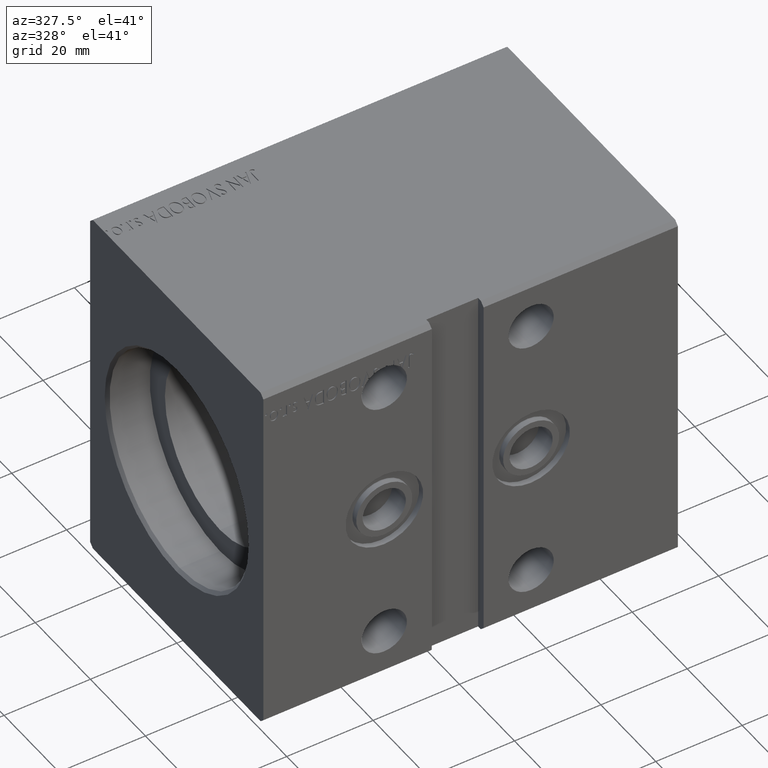
[diagram: clean part render]
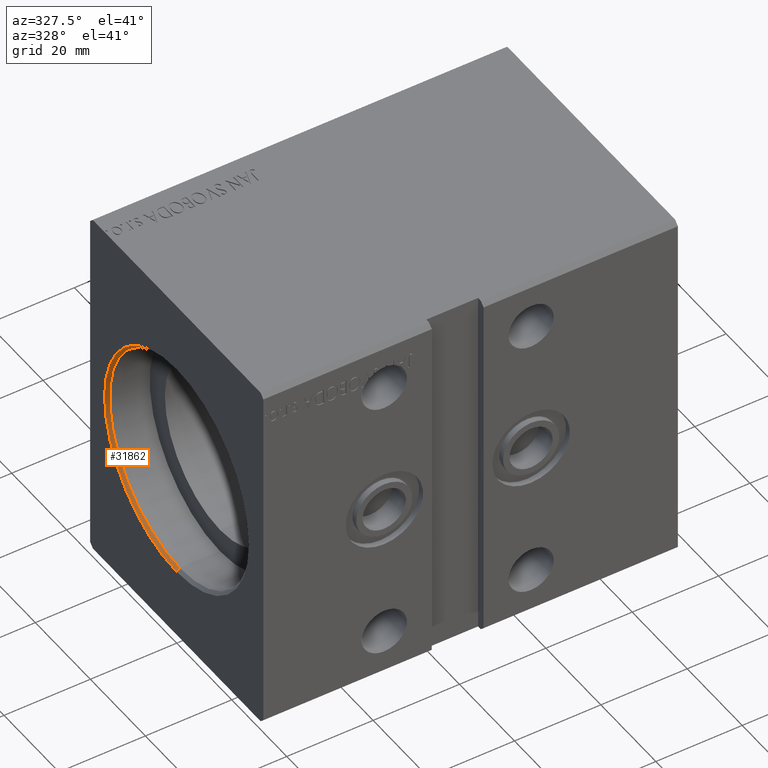
[diagram: same view with one face highlighted and labeled with its STEP entity id]
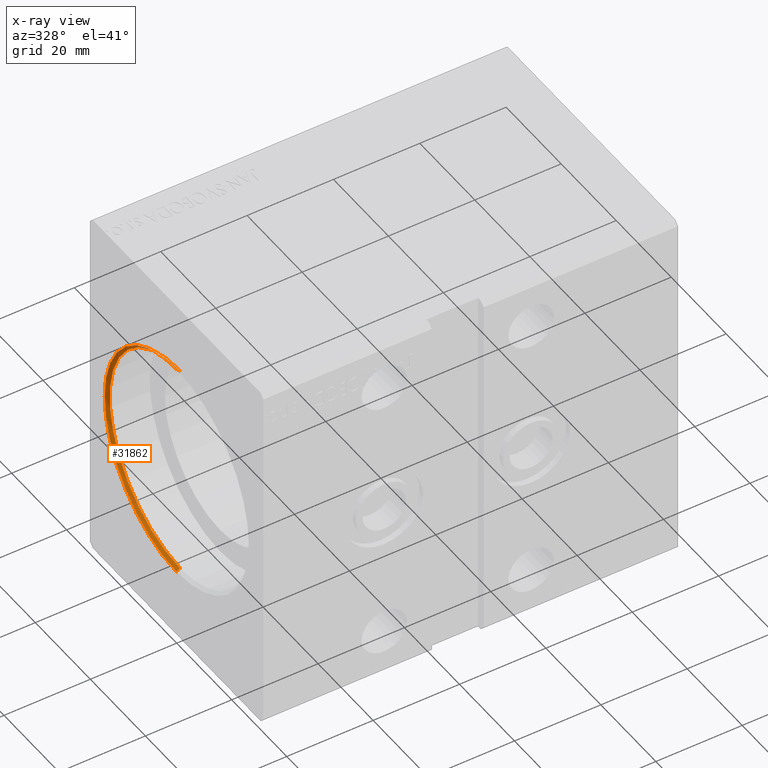
[diagram: x-ray of the same camera — body ghosted, the highlighted face saturated]
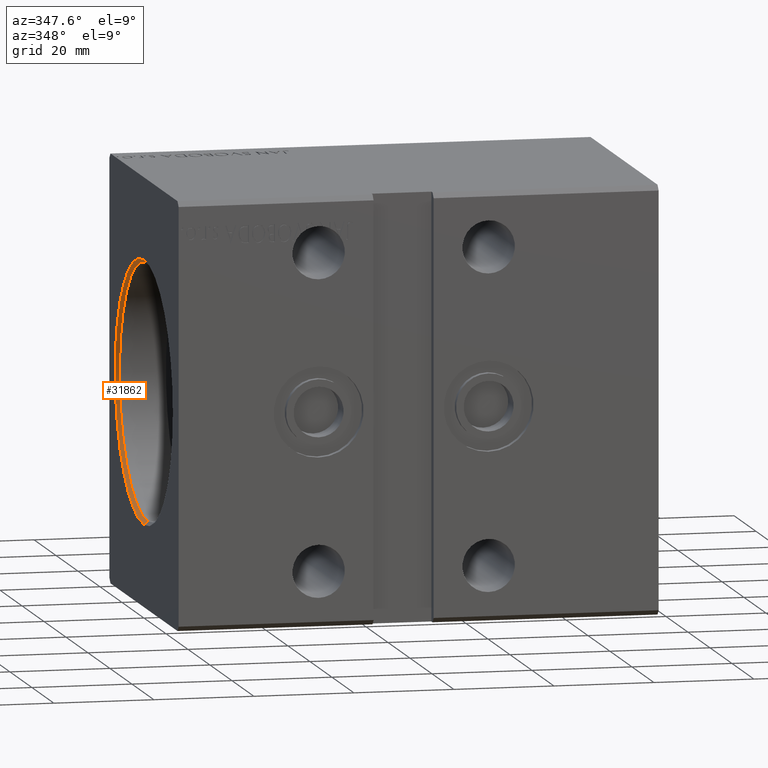
[diagram: same view with one face highlighted and labeled with its STEP entity id]
A machine part, auxiliary view. The second image highlights one B-rep face of the part: STEP entity #31862.
The next image is the same camera in x-ray: the body ghosted, the highlighted face saturated — about 0% of this face is hidden behind the body in this view.
A second angle (auxiliary view) of the same face is appended — the face is thin or edge-on in the first view.
In plain terms, the highlighted conical surface has half-angle 45 deg.
Its self-contained STEP definition (entity closure, byte-faithful):
#1362 = VERTEX_POINT ( 'NONE', #25617 ) ;
#2062 = CONICAL_SURFACE ( 'NONE', #8648, 25.50000000000000000, 0.7853981633974557175 ) ;
#2242 = CARTESIAN_POINT ( 'NONE',  ( 0.6999999999999784173, 0.000000000000000000, 0.000000000000000000 ) ) ;
#2309 = VERTEX_POINT ( 'NONE', #25471 ) ;
#3672 = CARTESIAN_POINT ( 'NONE',  ( 0.000000000000000000, 0.000000000000000000, 0.000000000000000000 ) ) ;
#4696 = ORIENTED_EDGE ( 'NONE', *, *, #34199, .F. ) ;
#5420 = AXIS2_PLACEMENT_3D ( 'NONE', #3672, #28748, #13136 ) ;
#8057 = CARTESIAN_POINT ( 'NONE',  ( 0.6999999999999784173, 0.000000000000000000, 0.000000000000000000 ) ) ;
#8648 = AXIS2_PLACEMENT_3D ( 'NONE', #2242, #20170, #29806 ) ;
#9907 = VECTOR ( 'NONE', #25141, 1000.000000000000000 ) ;
#11037 = ORIENTED_EDGE ( 'NONE', *, *, #30896, .F. ) ;
#12449 = EDGE_CURVE ( 'NONE', #1362, #40370, #29635, .T. ) ;
#12605 = LINE ( 'NONE', #19192, #9907 ) ;
#13136 = DIRECTION ( 'NONE',  ( 0.000000000000000000, 0.000000000000000000, -1.000000000000000000 ) ) ;
#14019 = DIRECTION ( 'NONE',  ( -0.7071067811865422437, 8.659560562354996953E-17, -0.7071067811865527908 ) ) ;
#16201 = VECTOR ( 'NONE', #14019, 1000.000000000000000 ) ;
#19192 = CARTESIAN_POINT ( 'NONE',  ( 0.6999999999999784173, 0.000000000000000000, 25.50000000000000000 ) ) ;
#20170 = DIRECTION ( 'NONE',  ( -1.000000000000000000, 0.000000000000000000, 0.000000000000000000 ) ) ;
#22458 = CIRCLE ( 'NONE', #23103, 25.50000000000000000 ) ;
#23103 = AXIS2_PLACEMENT_3D ( 'NONE', #8057, #30034, #33529 ) ;
#24328 = ORIENTED_EDGE ( 'NONE', *, *, #29175, .T. ) ;
#25080 = VERTEX_POINT ( 'NONE', #31045 ) ;
#25141 = DIRECTION ( 'NONE',  ( -0.7071067811865422437, 0.000000000000000000, 0.7071067811865527908 ) ) ;
#25471 = CARTESIAN_POINT ( 'NONE',  ( 0.000000000000000000, 0.000000000000000000, 26.19999999999998863 ) ) ;
#25617 = CARTESIAN_POINT ( 'NONE',  ( 0.6999999999999784173, 3.122849337825750222E-15, -25.50000000000000000 ) ) ;
#26437 = CIRCLE ( 'NONE', #5420, 26.19999999999998863 ) ;
#28748 = DIRECTION ( 'NONE',  ( 1.000000000000000000, 0.000000000000000000, 0.000000000000000000 ) ) ;
#29175 = EDGE_CURVE ( 'NONE', #25080, #2309, #12605, .T. ) ;
#29635 = LINE ( 'NONE', #38488, #16201 ) ;
#29806 = DIRECTION ( 'NONE',  ( 0.000000000000000000, 0.000000000000000000, 1.000000000000000000 ) ) ;
#30034 = DIRECTION ( 'NONE',  ( -1.000000000000000000, 0.000000000000000000, 0.000000000000000000 ) ) ;
#30896 = EDGE_CURVE ( 'NONE', #25080, #1362, #22458, .T. ) ;
#31045 = CARTESIAN_POINT ( 'NONE',  ( 0.6999999999999784173, 0.000000000000000000, 25.50000000000000000 ) ) ;
#31862 = ADVANCED_FACE ( 'NONE', ( #35775 ), #2062, .F. ) ;
#33529 = DIRECTION ( 'NONE',  ( 0.000000000000000000, 0.000000000000000000, -1.000000000000000000 ) ) ;
#34199 = EDGE_CURVE ( 'NONE', #40370, #2309, #26437, .T. ) ;
#34390 = EDGE_LOOP ( 'NONE', ( #39633, #11037, #24328, #4696 ) ) ;
#35775 = FACE_OUTER_BOUND ( 'NONE', #34390, .T. ) ;
#38488 = CARTESIAN_POINT ( 'NONE',  ( 0.6999999999999784173, 3.122849337825750222E-15, -25.50000000000000000 ) ) ;
#39633 = ORIENTED_EDGE ( 'NONE', *, *, #12449, .F. ) ;
#40182 = CARTESIAN_POINT ( 'NONE',  ( 0.000000000000000000, 3.208574613766063722E-15, -26.19999999999998863 ) ) ;
#40370 = VERTEX_POINT ( 'NONE', #40182 ) ;